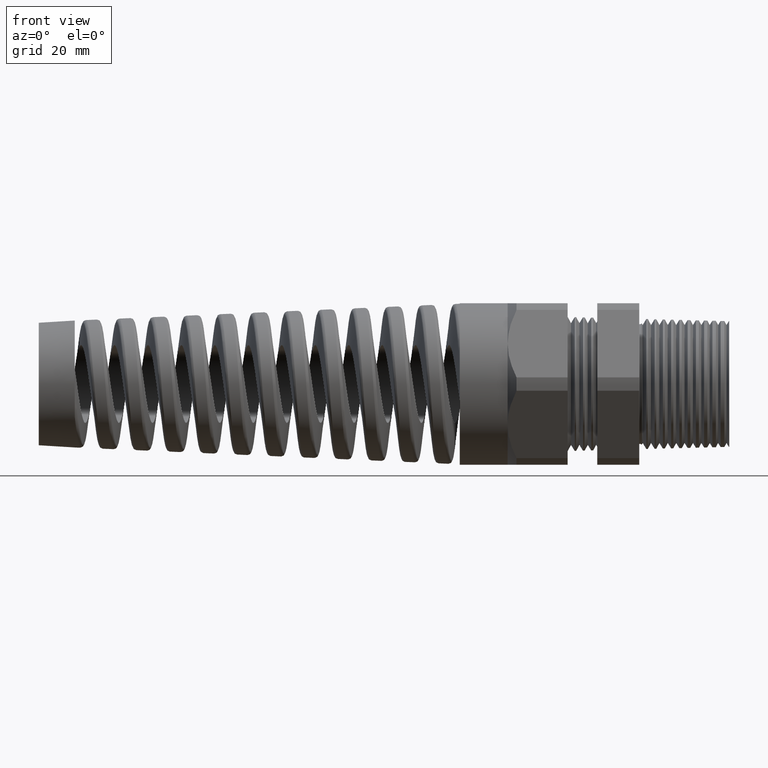
[diagram: clean part render]
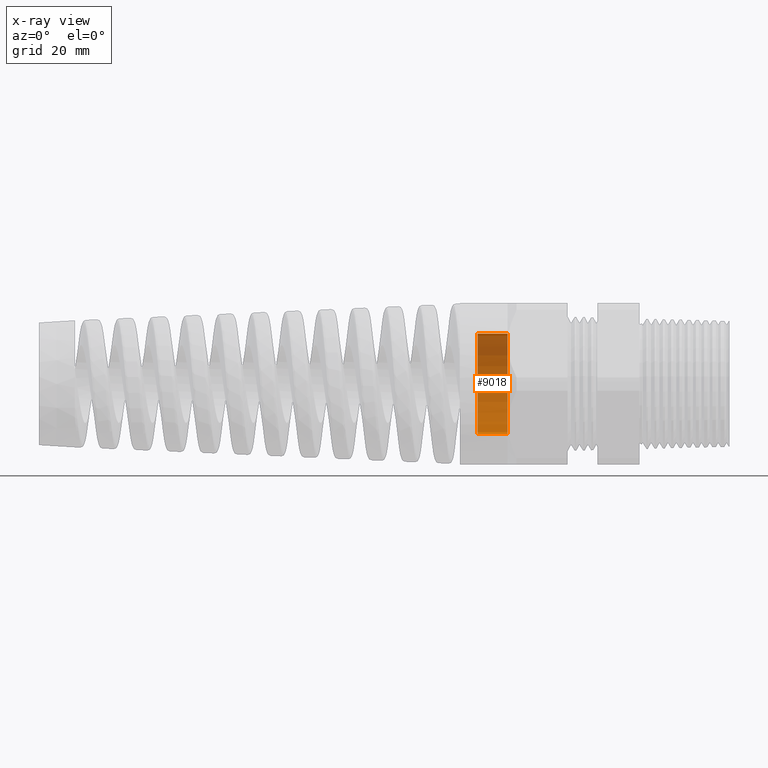
[diagram: x-ray — body ghosted, one internal face saturated and labeled with its STEP entity id]
A machine part, front view, then the same camera in x-ray: the body is ghosted and one INTERNAL B-rep face — a face not visible from any outside direction — is saturated and labeled: STEP entity #9018.
In plain terms, the highlighted cylindrical surface (partial cylindrical patch) has radius 8.382 mm, axis along (1, 0, 0).
Its self-contained STEP definition (entity closure, byte-faithful):
#3368 = LINE ( 'NONE', #16280, #16277 ) ;
#3386 = CARTESIAN_POINT ( 'NONE',  ( -1.173779527559055200, 0.0000000000000000000, -0.3300000000000000200 ) ) ;
#3387 = CARTESIAN_POINT ( 'NONE',  ( -1.173779527559055200, 4.041334437186265900E-017, 0.3300000000000000200 ) ) ;
#3394 = DIRECTION ( 'NONE',  ( 0.0000000000000000000, 0.0000000000000000000, -1.000000000000000000 ) ) ;
#3395 = DIRECTION ( 'NONE',  ( 1.000000000000000000, 0.0000000000000000000, 0.0000000000000000000 ) ) ;
#3396 = CARTESIAN_POINT ( 'NONE',  ( -1.173779527559055200, 0.0000000000000000000, 0.0000000000000000000 ) ) ;
#3397 = AXIS2_PLACEMENT_3D ( 'NONE', #3396, #3395, #3394 ) ;
#3398 = CIRCLE ( 'NONE', #3397, 0.3300000000000000200 ) ;
#8914 = ORIENTED_EDGE ( 'NONE', *, *, #8991, .F. ) ;
#8923 = ORIENTED_EDGE ( 'NONE', *, *, #8992, .T. ) ;
#8938 = ORIENTED_EDGE ( 'NONE', *, *, #8966, .F. ) ;
#8966 = EDGE_CURVE ( 'NONE', #8976, #8973, #3398, .T. ) ;
#8973 = VERTEX_POINT ( 'NONE', #3387 ) ;
#8976 = VERTEX_POINT ( 'NONE', #3386 ) ;
#8991 = EDGE_CURVE ( 'NONE', #8997, #8976, #3368, .T. ) ;
#8992 = EDGE_CURVE ( 'NONE', #8996, #8973, #16321, .T. ) ;
#8996 = VERTEX_POINT ( 'NONE', #16317 ) ;
#8997 = VERTEX_POINT ( 'NONE', #16316 ) ;
#9018 = ADVANCED_FACE ( 'NONE', ( #16302 ), #16301, .T. ) ;
#9021 = EDGE_CURVE ( 'NONE', #8997, #8996, #16296, .T. ) ;
#9030 = ORIENTED_EDGE ( 'NONE', *, *, #9021, .T. ) ;
#9064 = EDGE_LOOP ( 'NONE', ( #9030, #8923, #8938, #8914 ) ) ;
#16277 = VECTOR ( 'NONE', #16279, 39.37007874015748100 ) ;
#16279 = DIRECTION ( 'NONE',  ( 1.000000000000000000, 0.0000000000000000000, 0.0000000000000000000 ) ) ;
#16280 = CARTESIAN_POINT ( 'NONE',  ( 0.0000000000000000000, 0.0000000000000000000, -0.3300000000000000200 ) ) ;
#16293 = DIRECTION ( 'NONE',  ( 0.0000000000000000000, 0.0000000000000000000, -1.000000000000000000 ) ) ;
#16294 = DIRECTION ( 'NONE',  ( 1.000000000000000000, 0.0000000000000000000, 0.0000000000000000000 ) ) ;
#16295 = AXIS2_PLACEMENT_3D ( 'NONE', #16300, #16294, #16293 ) ;
#16296 = CIRCLE ( 'NONE', #16295, 0.3300000000000000200 ) ;
#16297 = DIRECTION ( 'NONE',  ( 0.0000000000000000000, 0.0000000000000000000, -1.000000000000000000 ) ) ;
#16298 = DIRECTION ( 'NONE',  ( 1.000000000000000000, 0.0000000000000000000, 0.0000000000000000000 ) ) ;
#16299 = AXIS2_PLACEMENT_3D ( 'NONE', #16307, #16298, #16297 ) ;
#16300 = CARTESIAN_POINT ( 'NONE',  ( -1.371000000000000000, 0.0000000000000000000, 0.0000000000000000000 ) ) ;
#16301 = CYLINDRICAL_SURFACE ( 'NONE', #16299, 0.3300000000000000200 ) ;
#16302 = FACE_OUTER_BOUND ( 'NONE', #9064, .T. ) ;
#16307 = CARTESIAN_POINT ( 'NONE',  ( 0.0000000000000000000, 0.0000000000000000000, 0.0000000000000000000 ) ) ;
#16316 = CARTESIAN_POINT ( 'NONE',  ( -1.371000000000000000, 0.0000000000000000000, -0.3300000000000000200 ) ) ;
#16317 = CARTESIAN_POINT ( 'NONE',  ( -1.371000000000000000, 4.041334437186265900E-017, 0.3300000000000000200 ) ) ;
#16318 = DIRECTION ( 'NONE',  ( 1.000000000000000000, 0.0000000000000000000, 0.0000000000000000000 ) ) ;
#16319 = VECTOR ( 'NONE', #16318, 39.37007874015748100 ) ;
#16320 = CARTESIAN_POINT ( 'NONE',  ( 0.0000000000000000000, 4.041334437186265900E-017, 0.3300000000000000200 ) ) ;
#16321 = LINE ( 'NONE', #16320, #16319 ) ;